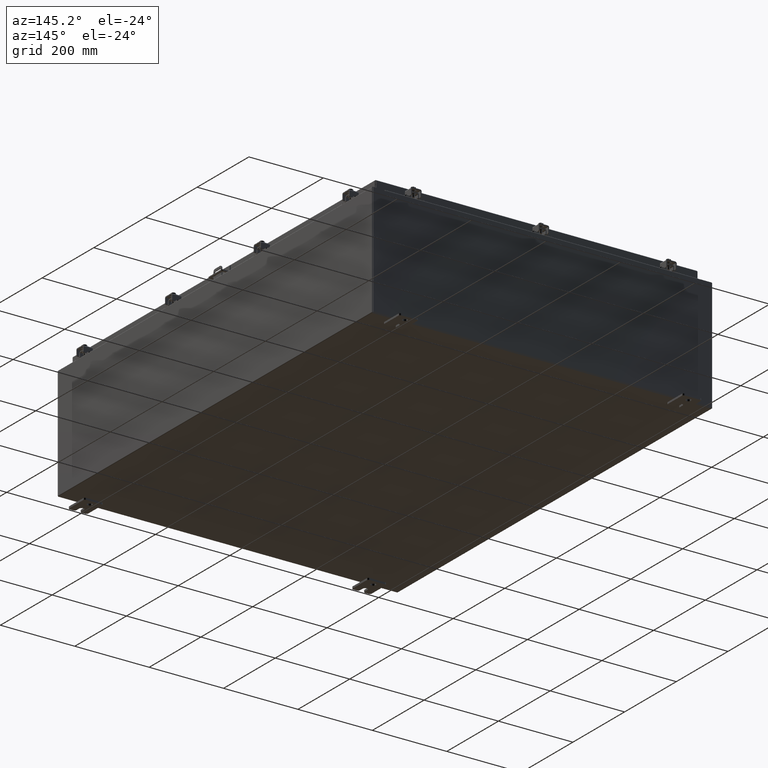
[diagram: clean part render]
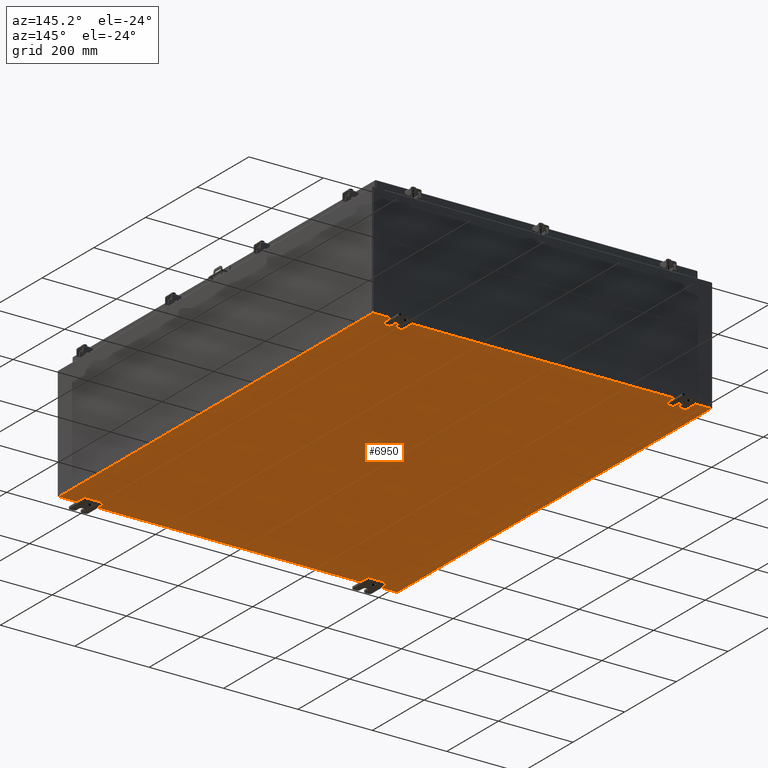
[diagram: same view with one face highlighted and labeled with its STEP entity id]
A machine part, auxiliary view. The second image highlights one B-rep face of the part: STEP entity #6950.
In plain terms, the highlighted planar face has unit normal (0, 0, -1).
Its self-contained STEP definition (entity closure, byte-faithful):
#269 = CARTESIAN_POINT ( 'NONE',  ( 17.91229999999999500, 23.92529999999998600, -0.07469999999999688000 ) ) ;
#984 = DIRECTION ( 'NONE',  ( -0.0000000000000000000, 1.000000000000000000, -0.0000000000000000000 ) ) ;
#1165 = ORIENTED_EDGE ( 'NONE', *, *, #38216, .T. ) ;
#1596 = AXIS2_PLACEMENT_3D ( 'NONE', #32225, #31262, #31198 ) ;
#1608 = CARTESIAN_POINT ( 'NONE',  ( 17.91229999999999500, 23.92529999999998900, -0.07469999999999688000 ) ) ;
#5813 = DIRECTION ( 'NONE',  ( -0.0000000000000000000, -1.000000000000000000, -8.208677865577646300E-017 ) ) ;
#6950 = ADVANCED_FACE ( 'NONE', ( #20505 ), #31510, .T. ) ;
#9483 = VERTEX_POINT ( 'NONE', #30013 ) ;
#9902 = ORIENTED_EDGE ( 'NONE', *, *, #24166, .T. ) ;
#10694 = LINE ( 'NONE', #29818, #20393 ) ;
#12458 = DIRECTION ( 'NONE',  ( 1.000000000000000000, 1.214154663850783700E-016, 0.0000000000000000000 ) ) ;
#13120 = LINE ( 'NONE', #48837, #35186 ) ;
#14951 = CARTESIAN_POINT ( 'NONE',  ( -17.91230000000000500, -23.92529999999998600, -0.07469999999999994700 ) ) ;
#15577 = ORIENTED_EDGE ( 'NONE', *, *, #38149, .F. ) ;
#20393 = VECTOR ( 'NONE', #984, 39.37007874015748100 ) ;
#20505 = FACE_OUTER_BOUND ( 'NONE', #47642, .T. ) ;
#22341 = ORIENTED_EDGE ( 'NONE', *, *, #49533, .F. ) ;
#23792 = DIRECTION ( 'NONE',  ( -1.000000000000000000, -0.0000000000000000000, -0.0000000000000000000 ) ) ;
#24166 = EDGE_CURVE ( 'NONE', #26647, #34263, #48163, .T. ) ;
#26647 = VERTEX_POINT ( 'NONE', #269 ) ;
#29818 = CARTESIAN_POINT ( 'NONE',  ( -17.91230000000000500, -23.92529999999998900, -0.07469999999999994700 ) ) ;
#30013 = CARTESIAN_POINT ( 'NONE',  ( -17.91230000000000500, 23.92529999999998900, -0.07470000000000000300 ) ) ;
#31198 = DIRECTION ( 'NONE',  ( -1.000000000000000000, 0.0000000000000000000, -0.0000000000000000000 ) ) ;
#31262 = DIRECTION ( 'NONE',  ( 0.0000000000000000000, 0.0000000000000000000, -1.000000000000000000 ) ) ;
#31510 = PLANE ( 'NONE',  #1596 ) ;
#32064 = CARTESIAN_POINT ( 'NONE',  ( 17.91229999999999500, -23.92530000000000000, -0.07470000000000000300 ) ) ;
#32225 = CARTESIAN_POINT ( 'NONE',  ( 0.0000000000000000000, 0.0000000000000000000, -0.07470000000000000300 ) ) ;
#33111 = CARTESIAN_POINT ( 'NONE',  ( -18.00000000000000400, -23.92530000000000400, -0.07470000000000000300 ) ) ;
#33903 = VERTEX_POINT ( 'NONE', #14951 ) ;
#34263 = VERTEX_POINT ( 'NONE', #32064 ) ;
#35186 = VECTOR ( 'NONE', #23792, 39.37007874015748100 ) ;
#38149 = EDGE_CURVE ( 'NONE', #33903, #34263, #46496, .T. ) ;
#38216 = EDGE_CURVE ( 'NONE', #33903, #9483, #10694, .T. ) ;
#45188 = VECTOR ( 'NONE', #12458, 39.37007874015748100 ) ;
#46496 = LINE ( 'NONE', #33111, #45188 ) ;
#46862 = VECTOR ( 'NONE', #5813, 39.37007874015748100 ) ;
#47642 = EDGE_LOOP ( 'NONE', ( #15577, #1165, #22341, #9902 ) ) ;
#48163 = LINE ( 'NONE', #1608, #46862 ) ;
#48837 = CARTESIAN_POINT ( 'NONE',  ( -18.00000000000000400, 23.92530000000000000, -0.07470000000000000300 ) ) ;
#49533 = EDGE_CURVE ( 'NONE', #26647, #9483, #13120, .T. ) ;